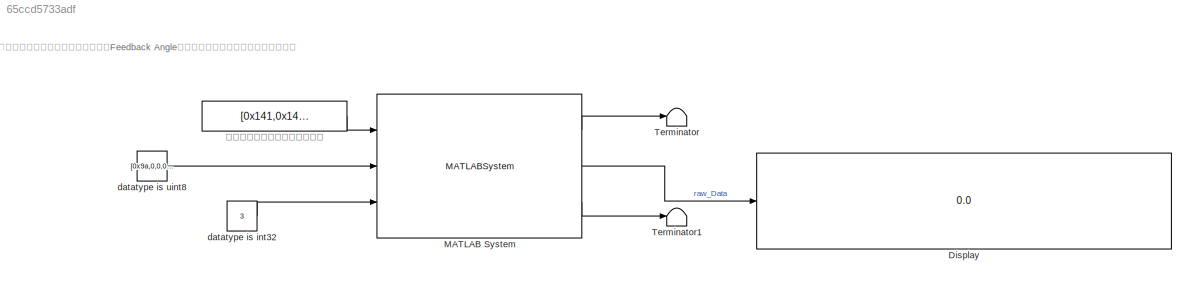
MODEL slx_65ccd5733adf
KIND model
CONFIG AbsTol = auto
CONFIG EnableMultiTasking = on
CONFIG FixedStep = 0.004
CONFIG MaxStep = auto
CONFIG MinStep = auto
CONFIG RelTol = 1e-3
CONFIG SampleTimeConstraint = Unconstrained
CONFIG SolverName = FixedStepAuto
CONFIG StartTime = 0.0
CONFIG StopTime = 600
BLOCK [Display] Display
  Decimation = 1
  Format = hex (Stored Integer)
  Ports = [1]
BLOCK [MATLABSystem] MATLAB System
  MaskDisplay = disp('CAN_Driver');\nport_label('input',1,'canID_array');\nport_label('input',2,'send_RawData');\nport_label('input',3,'dev_Num');\nport_label('output',1,'recv_ID');\nport_label('output',2,'recv_rawData');\nport_label('output',3,'err');
  MaskType = canSendRecv
  Ports = [3, 3]
  System = canSendRecv
  canPort = can1
BLOCK [Terminator] Terminator
BLOCK [Terminator] Terminator1
BLOCK [Constant] datatype is int32
  OutDataTypeStr = int32
  Value = 3
BLOCK [Constant] datatype is uint8
  OutDataTypeStr = uint8
  Value = [0x9a,0,0,0,0,0,0,0,0x9a,0,0,0,0,0,0,0,0x9a,0,0,0,0,0,0,0]
BLOCK [Constant] 此数组必须包含两个以上的数字
  Value = [0x141,0x142,0x143]
ANNOTATION (root): 注意，如果更换电机编号，还需要到Feedback Angle子函数中更改电机位置零点偏置数值！
LINE MATLAB System:1 -> Terminator:1
LINE MATLAB System:2 -> Display:1
LINE MATLAB System:3 -> Terminator1:1
LINE datatype is int32:1 -> MATLAB System:3
LINE datatype is uint8:1 -> MATLAB System:2
LINE 此数组必须包含两个以上的数字:1 -> MATLAB System:1
